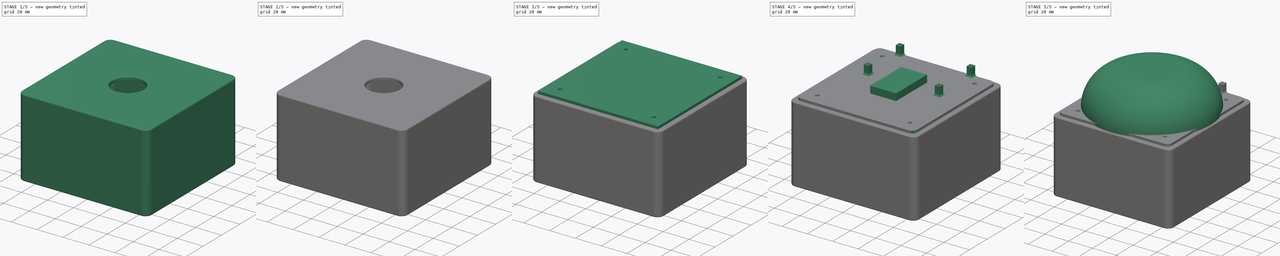
[diagram: build sequence overview — one tinted view per stage of 5, left to right]
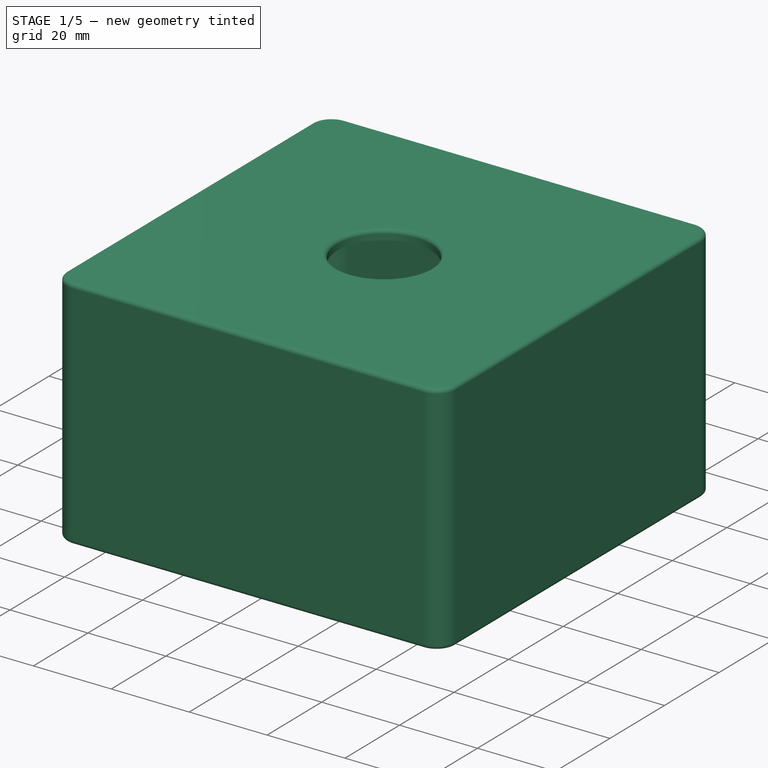
[diagram: stage 1 of 5 — iso view after this stage's code; geometry added in this stage tinted green]
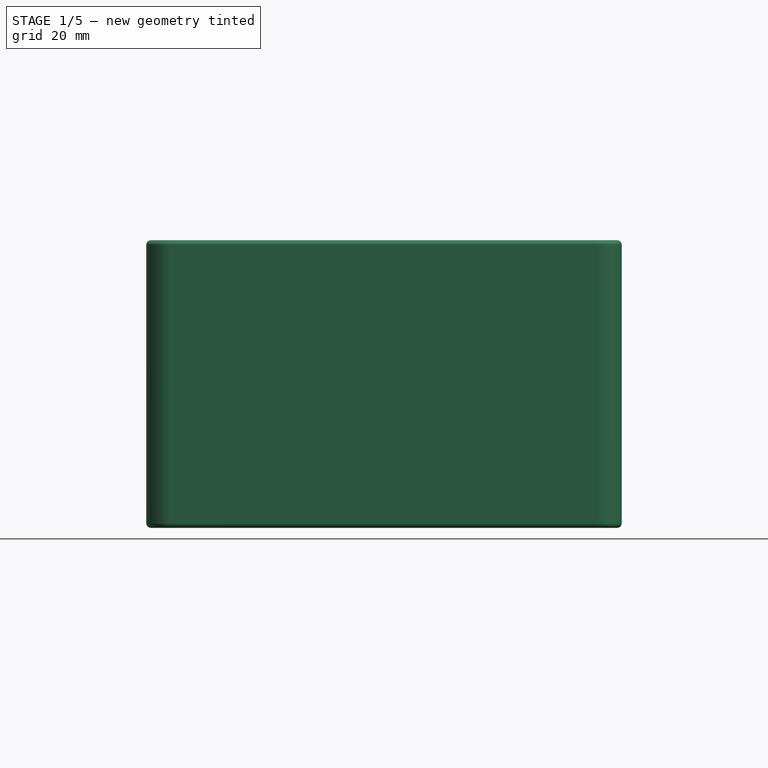
[diagram: stage 1 of 5 — front view after this stage's code; geometry added in this stage tinted green]
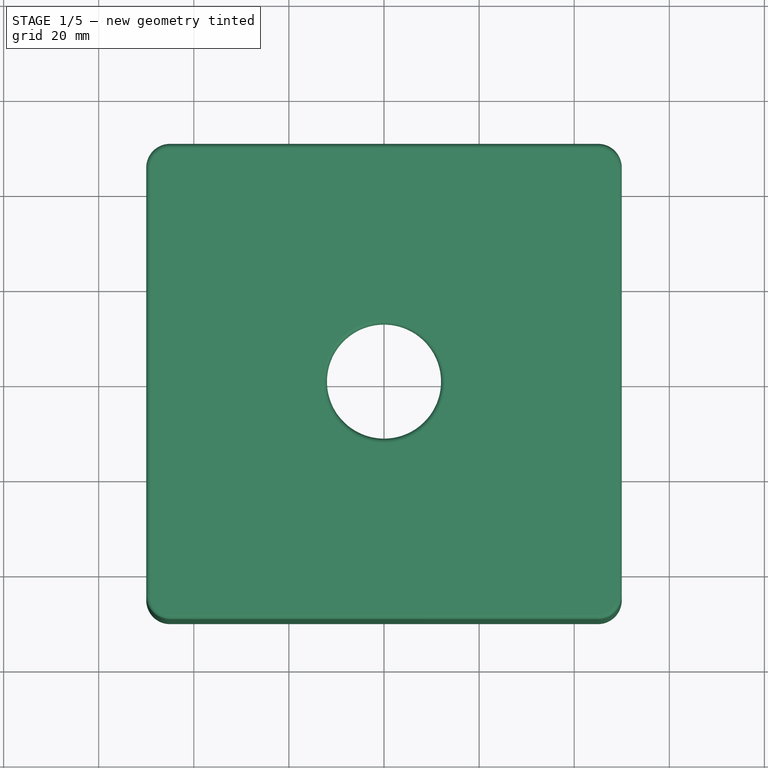
[diagram: stage 1 of 5 — top view after this stage's code; geometry added in this stage tinted green]
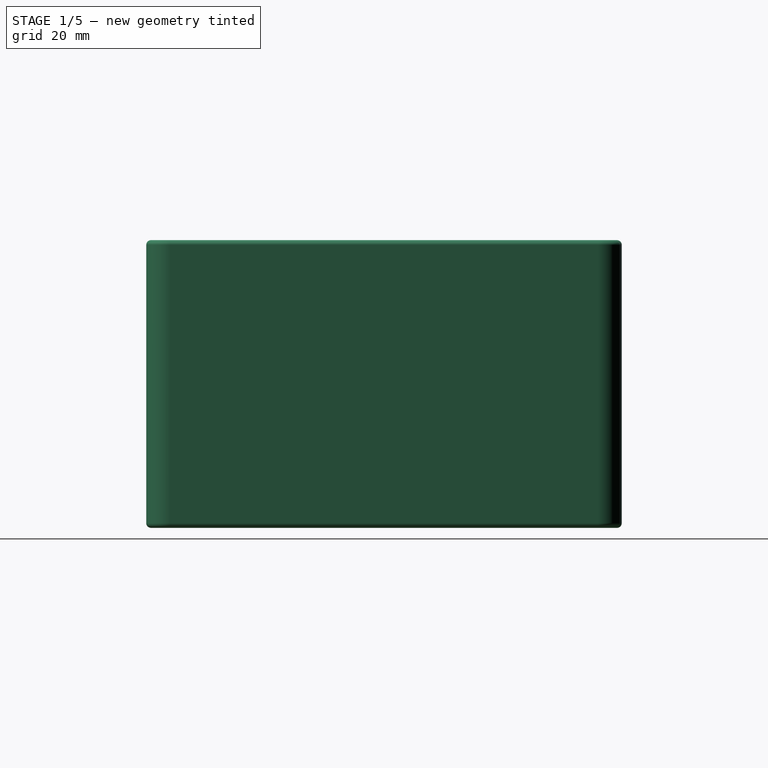
[diagram: stage 1 of 5 — right view after this stage's code; geometry added in this stage tinted green]
FCSTD DOCUMENT  (FreeCAD 0.18R4 (GitTag))
Label: buzzer
License: All rights reserved
LicenseURL: http://en.wikipedia.org/wiki/All_rights_reserved
objects: Sketcher::SketchObject×16, PartDesign::Pad×11, PartDesign::Fillet×8, PartDesign::Body×4, PartDesign::Pocket×3, PartDesign::Chamfer×3, PartDesign::Hole×2
note: 63 computed .brp shape members not serialized (recipe doc carries the construction recipe); baked Part::Feature solids carry a one-line shape summary decoded from their .brp

FEATURE [Sketcher::SketchObject] Sketch004
  MapMode = 5
  Support = -> [XY_Plane002]
  sketch-geometry (5):
    g0: LineSegment StartX=-50 StartY=50 StartZ=0 EndX=50 EndY=50 EndZ=0
    g1: LineSegment StartX=50 StartY=50 StartZ=0 EndX=50 EndY=-50 EndZ=0
    g2: LineSegment StartX=50 StartY=-50 StartZ=0 EndX=-50 EndY=-50 EndZ=0
    g3: LineSegment StartX=-50 StartY=-50 StartZ=0 EndX=-50 EndY=50 EndZ=0
    g4: Circle CenterX=0 CenterY=0 CenterZ=0 NormalX=0 NormalY=0 NormalZ=1 AngleXU=0 Radius=12
  constraints (13):
    c: Coincident(g0,g1)
    c: Coincident(g1,g2)
    c: Coincident(g2,g3)
    c: Coincident(g3,g0)
    c: Horizontal(g0)
    c: Horizontal(g2)
    c: Vertical(g1)
    c: Vertical(g3)
    c: Symmetric(g0,g1,g-1)
    c: DistanceX(g0,g0) = 100
    c: Equal(g1,g0)
    c: Coincident(g4,g-1)
    c: Radius(g4) = 12
FEATURE [PartDesign::Pad] Pad005
  Length = 2.5
  Length2 = 100
  Profile = -> Sketch004
  Reversed = true
  Type = 0
FEATURE [Sketcher::SketchObject] Sketch005
  ExternalGeometry = -> [Pad005]
  MapMode = 5
  Placement = pos=(0,0,-2.5) rot=(1,0,0;3.14159rad)
  Support = -> [Pad005]
  sketch-geometry (8):
    g0: LineSegment StartX=-50 StartY=50 StartZ=0 EndX=50 EndY=50 EndZ=0
    g1: LineSegment StartX=50 StartY=50 StartZ=0 EndX=50 EndY=-50 EndZ=0
    g2: LineSegment StartX=50 StartY=-50 StartZ=0 EndX=-50 EndY=-50 EndZ=0
    g3: LineSegment StartX=-50 StartY=-50 StartZ=0 EndX=-50 EndY=50 EndZ=0
    g4: LineSegment StartX=-47.5 StartY=47.5 StartZ=0 EndX=47.5 EndY=47.5 EndZ=0
    g5: LineSegment StartX=47.5 StartY=47.5 StartZ=0 EndX=47.5 EndY=-47.5 EndZ=0
    g6: LineSegment StartX=47.5 StartY=-47.5 StartZ=0 EndX=-47.5 EndY=-47.5 EndZ=0
    g7: LineSegment StartX=-47.5 StartY=-47.5 StartZ=0 EndX=-47.5 EndY=47.5 EndZ=0
  constraints (21):
    c: Coincident(g0,g1)
    c: Coincident(g1,g2)
    c: Coincident(g2,g3)
    c: Coincident(g3,g0)
    c: Horizontal(g0)
    c: Horizontal(g2)
    c: Vertical(g1)
    c: Vertical(g3)
    c: Coincident(g0,g-3)
    c: Coincident(g1,g-4)
    c: Coincident(g4,g5)
    c: Coincident(g5,g6)
    c: Coincident(g6,g7)
    c: Coincident(g7,g4)
    c: Horizontal(g4)
    c: Horizontal(g6)
    c: Vertical(g5)
    c: Vertical(g7)
    c: Symmetric(g4,g5,g-1)
    c: Equal(g4,g5)
    c: DistanceX(g0,g4) = 2.5
FEATURE [PartDesign::Pad] Pad006
  BaseFeature = -> Pad005
  Length = 58
  Length2 = 100
  Profile = -> Sketch005
  Type = 0
FEATURE [PartDesign::Fillet] Fillet003
  Base = -> Pad006 [Edge16,Edge18,Edge19,Edge21,Edge35,Edge34,Edge33,Edge32]
  BaseFeature = -> Pad006
  Radius = 5
FEATURE [PartDesign::Fillet] Fillet004
  Base = -> Fillet003 [Face1]
  BaseFeature = -> Fillet003
  Radius = 1
FEATURE [PartDesign::Fillet] Fillet005
  Base = -> Fillet004 [Edge54]
  BaseFeature = -> Fillet004
  Radius = 1
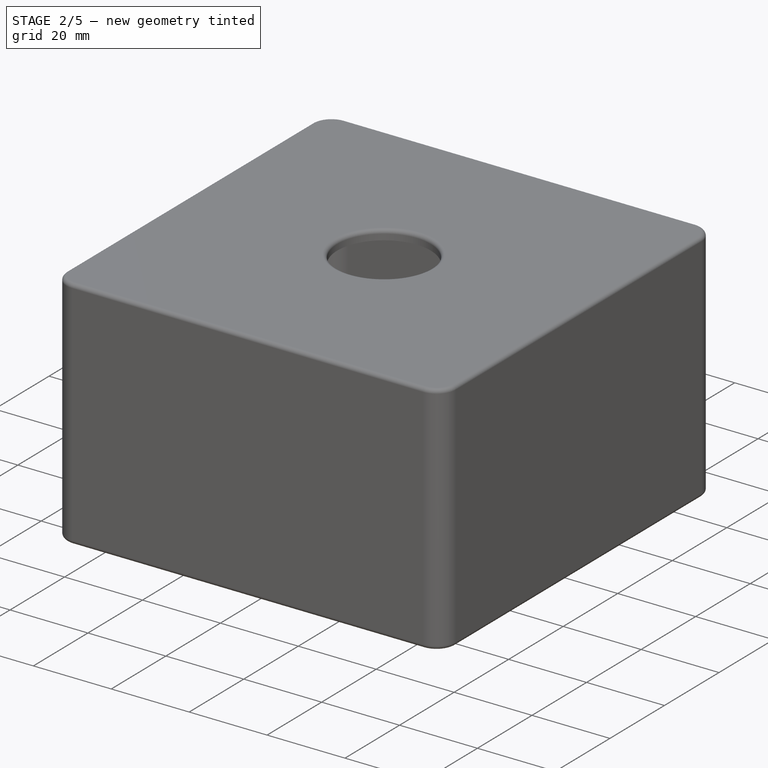
[diagram: stage 2 of 5 — iso view after this stage's code; geometry added in this stage tinted green]
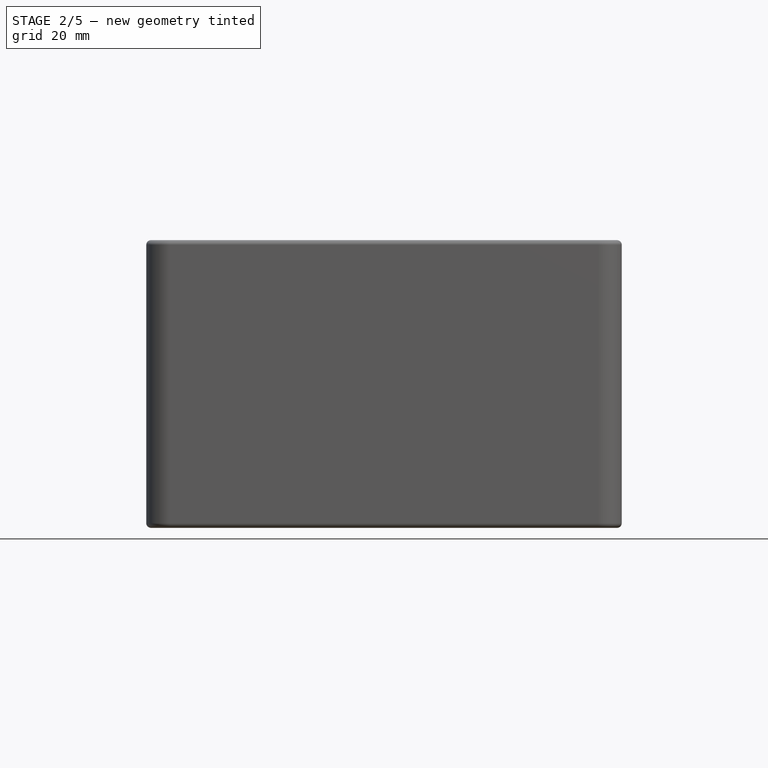
[diagram: stage 2 of 5 — front view after this stage's code; geometry added in this stage tinted green]
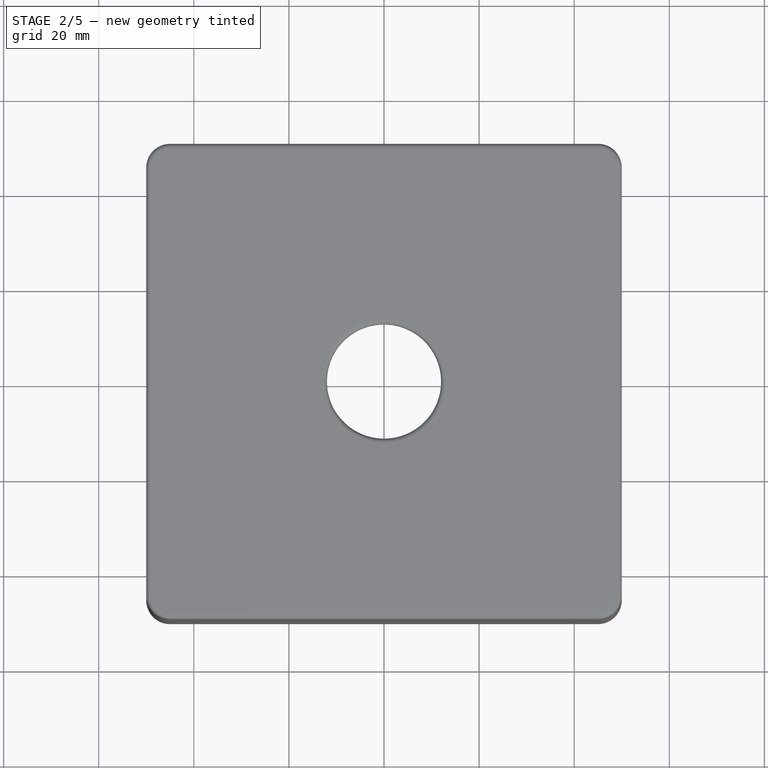
[diagram: stage 2 of 5 — top view after this stage's code; geometry added in this stage tinted green]
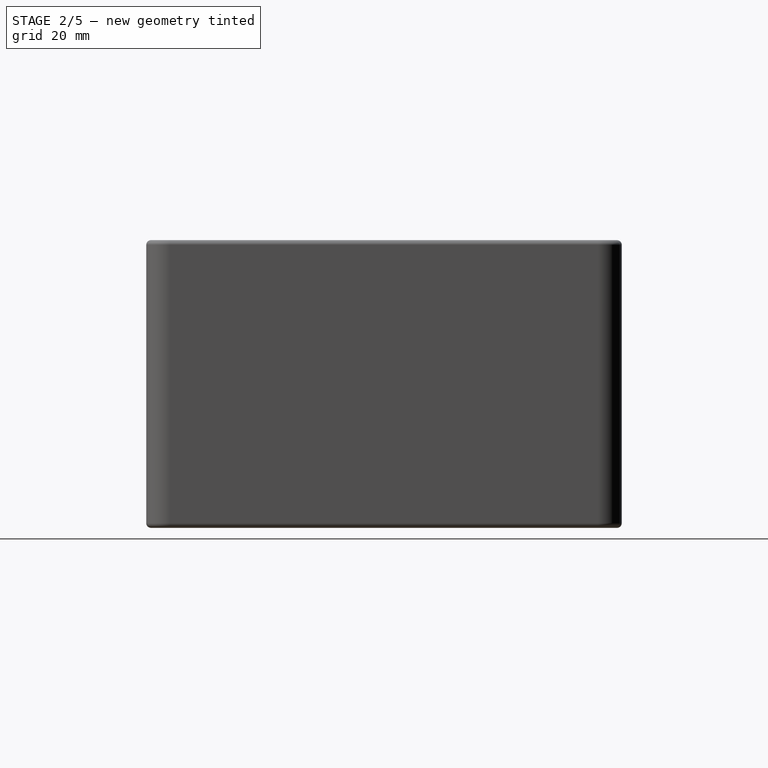
[diagram: stage 2 of 5 — right view after this stage's code; geometry added in this stage tinted green]
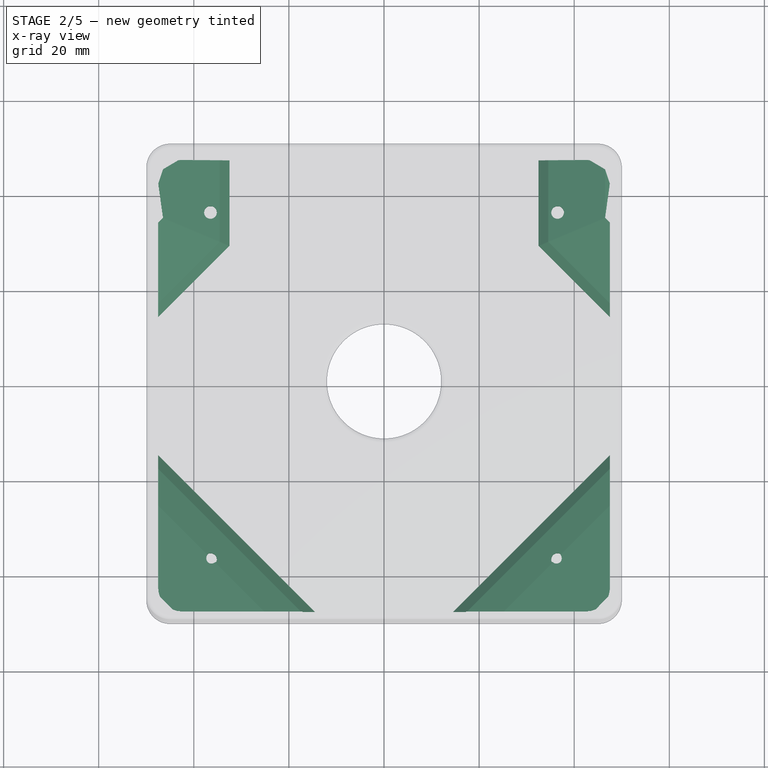
[diagram: stage 2 of 5 — x-ray composite at the top view; earlier geometry ghosted, this stage's added geometry solid]
FEATURE [PartDesign::Body] Body001  label="Bottom"
  Group = -> [Sketch003,Pad003,Sketch011,Pocket,Sketch013,Pad012,Fillet001,Fillet002,Sketch014,Hole]
  Origin = -> Origin001
  Placement = pos=(0,0,-0.5) rot=(0,0,1;0rad)
  Tip = -> Hole
FEATURE [Sketcher::SketchObject] Sketch016
  ExternalGeometry = -> [Fillet005]
  MapMode = 5
  Placement = pos=(0,0,-60.5) rot=(1,0,0;3.14159rad)
  Support = -> [Fillet005]
  sketch-geometry (18):
    g0: LineSegment StartX=47.5 StartY=47.5 StartZ=0 EndX=14.5 EndY=47.5 EndZ=0
    g1: LineSegment StartX=14.5 StartY=47.5 StartZ=0 EndX=47.5 EndY=14.5 EndZ=0
    g2: LineSegment StartX=47.5 StartY=47.5 StartZ=0 EndX=47.5 EndY=14.5 EndZ=0
    g3: LineSegment StartX=-47.5 StartY=47.5 StartZ=0 EndX=-14.5 EndY=47.5 EndZ=0
    g4: LineSegment StartX=-14.5 StartY=47.5 StartZ=0 EndX=-47.5 EndY=14.5 EndZ=0
    g5: LineSegment StartX=-47.5 StartY=14.5 StartZ=0 EndX=-47.5 EndY=47.5 EndZ=0
    g6: LineSegment StartX=-47.5 StartY=-14.5 StartZ=0 EndX=-47.5 EndY=-47.5 EndZ=0
    g7: LineSegment StartX=-32.5 StartY=-29.5 StartZ=0 EndX=-47.5 EndY=-14.5 EndZ=0
    g8: LineSegment StartX=32.5 StartY=-47.5 StartZ=0 EndX=47.5 EndY=-47.5 EndZ=0
    g9: LineSegment StartX=47.5 StartY=-47.5 StartZ=0 EndX=47.5 EndY=-14.5 EndZ=0
    g10: LineSegment [constr] StartX=47.5 StartY=-14.5 StartZ=0 EndX=14.5 EndY=-47.5 EndZ=0
    g11: LineSegment StartX=-32.5 StartY=-29.5 StartZ=0 EndX=-32.5 EndY=-47.5 EndZ=0
    g12: LineSegment StartX=-47.5 StartY=-47.5 StartZ=0 EndX=-32.5 EndY=-47.5 EndZ=0
    g13: LineSegment [constr] StartX=-47.5 StartY=-47.5 StartZ=0 EndX=-14.5 EndY=-47.5 EndZ=0
    g14: LineSegment [constr] StartX=-47.5 StartY=-14.5 StartZ=0 EndX=-14.5 EndY=-47.5 EndZ=0
    g15: LineSegment StartX=32.5 StartY=-47.5 StartZ=0 EndX=32.5 EndY=-29.5 EndZ=0
    g16: LineSegment StartX=32.5 StartY=-29.5 StartZ=0 EndX=47.5 EndY=-14.5 EndZ=0
    g17: LineSegment [constr] StartX=14.5 StartY=-47.5 StartZ=0 EndX=47.5 EndY=-47.5 EndZ=0
  constraints (53):
    c: Horizontal(g0)
    c: Coincident(g0,g1)
    c: Coincident(g2,g0)
    c: Coincident(g2,g1)
    c: Vertical(g2)
    c: Horizontal(g3)
    c: Coincident(g3,g4)
    c: Coincident(g4,g5)
    c: Coincident(g5,g3)
    c: Vertical(g5)
    c: Vertical(g6)
    c: Coincident(g7,g6)
    c: Horizontal(g8)
    c: Coincident(g8,g9)
    c: Vertical(g9)
    c: Coincident(g9,g10)
    c: Equal(g9,g6)
    c: Equal(g5,g3)
    c: Equal(g3,g0)
    c: Equal(g0,g2)
    c: DistanceY(g5,g5) = 33
    c: PointOnObject(g9,g-5)
    c: PointOnObject(g6,g-4)
    c: PointOnObject(g3,g-3)
    c: PointOnObject(g4,g-4)
    c: PointOnObject(g0,g-3)
    c: PointOnObject(g1,g-5)
    c: Vertical(g11)
    c: Coincident(g12,g6)
    c: PointOnObject(g12,g-6)
    c: Horizontal(g12)
    c: Coincident(g11,g12)
    c: Coincident(g11,g7)
    c: Coincident(g13,g6)
    c: PointOnObject(g13,g-6)
    c: Coincident(g14,g6)
    c: Coincident(g14,g13)
    c: Equal(g13,g6)
    c: Equal(g6,g5)
    c: PointOnObject(g7,g14)
    c: DistanceX(g12,g12) = 15
    c: PointOnObject(g8,g-6)
    c: PointOnObject(g15,g8)
    c: PointOnObject(g15,g10)
    c: Vertical(g15)
    c: Coincident(g16,g15)
    c: Coincident(g16,g9)
    c: PointOnObject(g10,g-6)
    c: Coincident(g17,g10)
    c: Coincident(g17,g8)
    c: Equal(g17,g9)
    c: Coincident(g8,g15)
    c: Equal(g8,g12)
FEATURE [PartDesign::Pad] Pad013
  BaseFeature = -> Fillet005
  Length = 10
  Length2 = 100
  Profile = -> Sketch016
  Reversed = true
  Type = 0
FEATURE [Sketcher::SketchObject] Sketch017
  ExternalGeometry = -> [Pad013]
  MapMode = 5
  Placement = pos=(0,0,-60.5) rot=(1,0,0;3.14159rad)
  Support = -> [Pad013]
  sketch-geometry (14):
    g0: LineSegment StartX=-47.5 StartY=14.5 StartZ=0 EndX=-47.5 EndY=47.5 EndZ=0
    g1: LineSegment StartX=-47.5 StartY=47.5 StartZ=0 EndX=-14.5 EndY=47.5 EndZ=0
    g2: LineSegment StartX=-14.5 StartY=47.5 StartZ=0 EndX=-47.5 EndY=14.5 EndZ=0
    g3: LineSegment StartX=14.5 StartY=47.5 StartZ=0 EndX=47.5 EndY=47.5 EndZ=0
    g4: LineSegment StartX=47.5 StartY=47.5 StartZ=0 EndX=47.5 EndY=14.5 EndZ=0
    g5: LineSegment StartX=47.5 StartY=14.5 StartZ=0 EndX=14.5 EndY=47.5 EndZ=0
    g6: LineSegment StartX=47.5 StartY=-14.5 StartZ=0 EndX=32.5 EndY=-29.5 EndZ=0
    g7: LineSegment StartX=32.5 StartY=-29.5 StartZ=0 EndX=32.5 EndY=-47.5 EndZ=0
    g8: LineSegment StartX=32.5 StartY=-47.5 StartZ=0 EndX=47.5 EndY=-47.5 EndZ=0
    g9: LineSegment StartX=47.5 StartY=-47.5 StartZ=0 EndX=47.5 EndY=-14.5 EndZ=0
    g10: LineSegment StartX=-47.5 StartY=-14.5 StartZ=0 EndX=-47.5 EndY=-47.5 EndZ=0
    g11: LineSegment StartX=-47.5 StartY=-47.5 StartZ=0 EndX=-32.5 EndY=-47.5 EndZ=0
    g12: LineSegment StartX=-32.5 StartY=-47.5 StartZ=0 EndX=-32.5 EndY=-29.5 EndZ=0
    g13: LineSegment StartX=-32.5 StartY=-29.5 StartZ=0 EndX=-47.5 EndY=-14.5 EndZ=0
  constraints (29):
    c: Coincident(g-3,g0)
    c: Coincident(g0,g-9)
    c: Coincident(g0,g1)
    c: Coincident(g1,g-3)
    c: Coincident(g1,g2)
    c: Coincident(g2,g0)
    c: Coincident(g-4,g3)
    c: Horizontal(g3)
    c: Coincident(g3,g4)
    c: Coincident(g4,g-4)
    c: Vertical(g4)
    c: Coincident(g4,g5)
    c: Coincident(g5,g3)
    c: Coincident(g-5,g6)
    c: Coincident(g6,g-6)
    c: Coincident(g6,g7)
    c: Coincident(g7,g-6)
    c: Coincident(g7,g8)
    c: Coincident(g8,g-11)
    c: Coincident(g8,g9)
    c: Coincident(g9,g6)
    c: Coincident(g-7,g10)
    c: Coincident(g10,g-10)
    c: Coincident(g10,g11)
    c: Coincident(g11,g-8)
    c: Coincident(g11,g12)
    c: Coincident(g12,g-8)
    c: Coincident(g12,g13)
    c: Coincident(g13,g10)
FEATURE [PartDesign::Pocket] Pocket001
  BaseFeature = -> Pad013
  Length = 2
  Length2 = 100
  Profile = -> Sketch017
  Type = 0
FEATURE [PartDesign::Chamfer] Chamfer
  Base = -> Pocket001 [Edge146,Edge145,Edge147,Edge157,Edge151,Edge152]
  BaseFeature = -> Pocket001
  Size = 7
FEATURE [PartDesign::Chamfer] Chamfer001
  Base = -> Chamfer [Edge14,Edge16,Edge61,Edge129,Edge123,Edge124]
  BaseFeature = -> Chamfer
  Size = 7
FEATURE [PartDesign::Chamfer] Chamfer002
  Base = -> Chamfer001 [Edge40,Edge142]
  BaseFeature = -> Chamfer001
  Size = 7
FEATURE [Sketcher::SketchObject] Sketch018
  MapMode = 5
  Placement = pos=(0,0,-58.5) rot=(1,0,0;3.14159rad)
  Support = -> [Chamfer002]
  sketch-geometry (8):
    g0: LineSegment [constr] StartX=-36.5 StartY=36.5 StartZ=0 EndX=36.5 EndY=36.5 EndZ=0
    g1: LineSegment [constr] StartX=36.5 StartY=36.5 StartZ=0 EndX=36.5 EndY=-36.5 EndZ=0
    g2: LineSegment [constr] StartX=36.5 StartY=-36.5 StartZ=0 EndX=-36.5 EndY=-36.5 EndZ=0
    g3: LineSegment [constr] StartX=-36.5 StartY=-36.5 StartZ=0 EndX=-36.5 EndY=36.5 EndZ=0
    g4: Circle CenterX=-36.5 CenterY=36.5 CenterZ=0 NormalX=0 NormalY=0 NormalZ=1 AngleXU=0 Radius=2
    g5: Circle CenterX=36.5 CenterY=36.5 CenterZ=0 NormalX=0 NormalY=0 NormalZ=1 AngleXU=0 Radius=2
    g6: Circle CenterX=36.5 CenterY=-36.5 CenterZ=0 NormalX=0 NormalY=0 NormalZ=1 AngleXU=0 Radius=2
    g7: Circle CenterX=-36.5 CenterY=-36.5 CenterZ=0 NormalX=0 NormalY=0 NormalZ=1 AngleXU=0 Radius=2
  constraints (19):
    c: Coincident(g0,g1)
    c: Coincident(g1,g2)
    c: Coincident(g2,g3)
    c: Coincident(g3,g0)
    c: Horizontal(g0)
    c: Horizontal(g2)
    c: Vertical(g1)
    c: Vertical(g3)
    c: Symmetric(g0,g1,g-1)
    c: Equal(g0,g3)
    c: DistanceY(g0) = 36.5
    c: Coincident(g4,g0)
    c: Coincident(g5,g0)
    c: Coincident(g6,g1)
    c: Coincident(g7,g2)
    c: Equal(g7,g4)
    c: Equal(g4,g5)
    c: Equal(g5,g6)
    c: Radius(g4) = 2
FEATURE [PartDesign::Hole] Hole001
  BaseFeature = -> Chamfer002
  Depth = 6
  DepthType = 0
  Diameter = 2.65
  DrillPoint = 1
  DrillPointAngle = 118
  HoleCutCountersinkAngle = 90
  HoleCutDepth = 0
  HoleCutDiameter = 3
  HoleCutType = 0
  ModelActualThread = false
  Profile = -> Sketch018
  Tapered = false
  TaperedAngle = 90
  ThreadAngle = 60
  ThreadClass = 0
  ThreadCutOffInner = 0.0378886
  ThreadCutOffOuter = 0.0757772
  ThreadDirection = 1
  ThreadFit = 0
  ThreadPitch = 0.35
  ThreadSize = 9
  ThreadType = 2
  Threaded = true
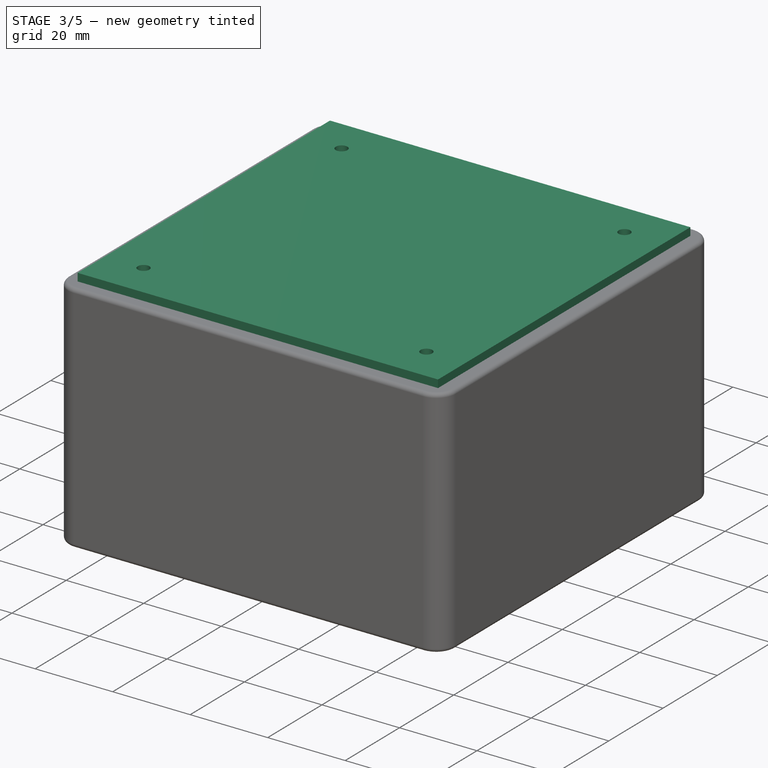
[diagram: stage 3 of 5 — iso view after this stage's code; geometry added in this stage tinted green]
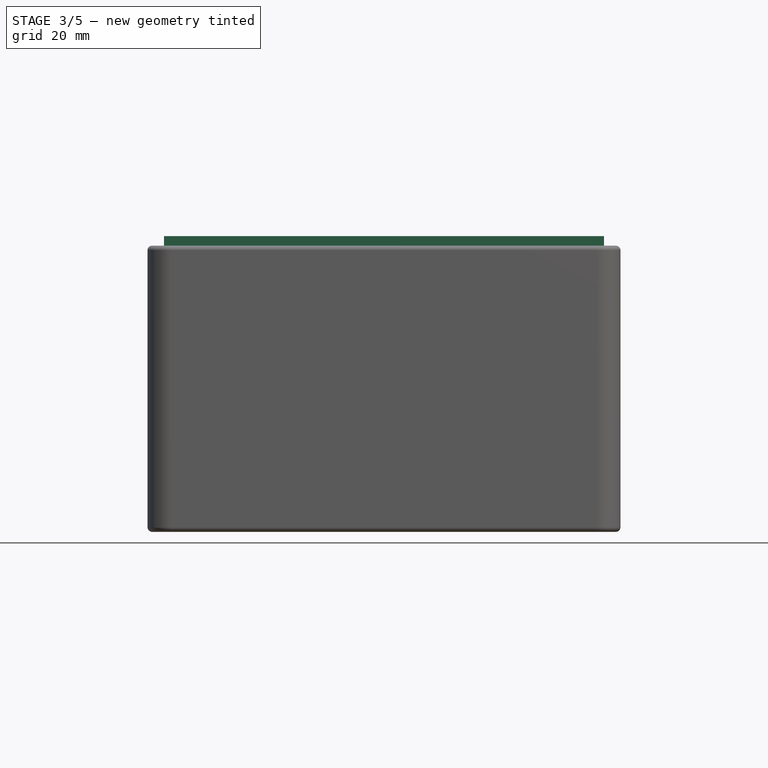
[diagram: stage 3 of 5 — front view after this stage's code; geometry added in this stage tinted green]
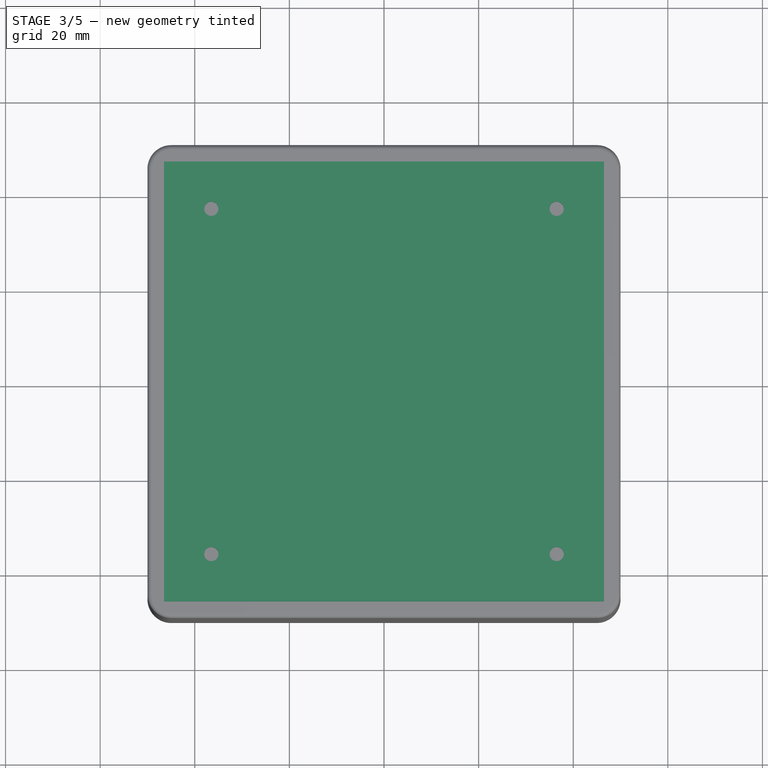
[diagram: stage 3 of 5 — top view after this stage's code; geometry added in this stage tinted green]
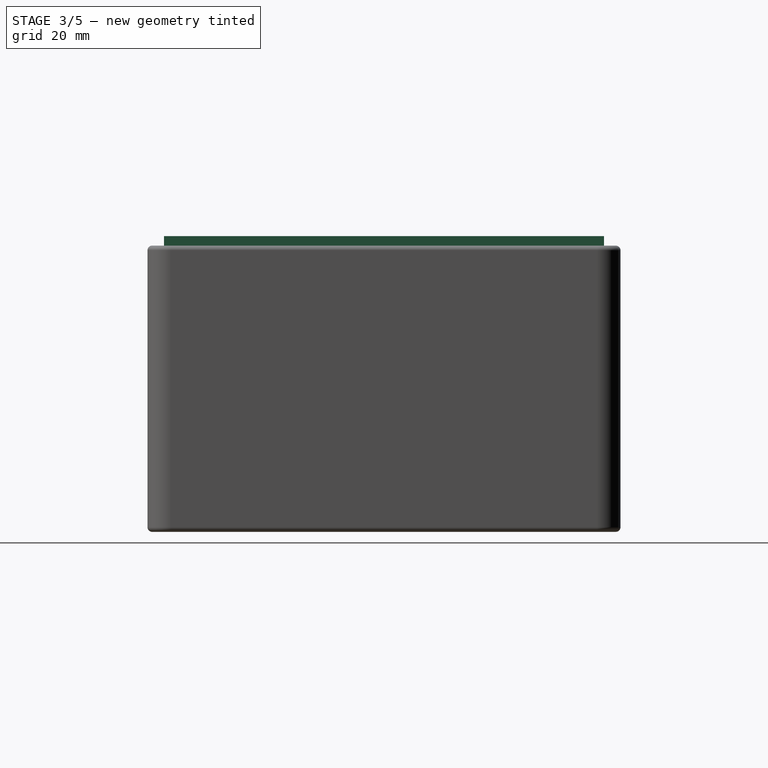
[diagram: stage 3 of 5 — right view after this stage's code; geometry added in this stage tinted green]
FEATURE [Sketcher::SketchObject] Sketch003
  MapMode = 5
  Support = -> [XY_Plane001]
  sketch-geometry (4):
    g0: LineSegment StartX=-46.5 StartY=46.5 StartZ=0 EndX=46.5 EndY=46.5 EndZ=0
    g1: LineSegment StartX=46.5 StartY=46.5 StartZ=0 EndX=46.5 EndY=-46.5 EndZ=0
    g2: LineSegment StartX=46.5 StartY=-46.5 StartZ=0 EndX=-46.5 EndY=-46.5 EndZ=0
    g3: LineSegment StartX=-46.5 StartY=-46.5 StartZ=0 EndX=-46.5 EndY=46.5 EndZ=0
  constraints (11):
    c: Coincident(g0,g1)
    c: Coincident(g1,g2)
    c: Coincident(g2,g3)
    c: Coincident(g3,g0)
    c: Horizontal(g0)
    c: Horizontal(g2)
    c: Vertical(g1)
    c: Vertical(g3)
    c: Symmetric(g1,g0,g-1)
    c: Equal(g0,g1)
    c: DistanceX(g0,g0) = 93
FEATURE [PartDesign::Pad] Pad003
  Length = 2
  Length2 = 100
  Profile = -> Sketch003
  Type = 0
FEATURE [Sketcher::SketchObject] Sketch011
  ExternalGeometry = -> [Pad003]
  MapMode = 5
  Placement = pos=(0,0,2) rot=(0,0,1;0rad)
  Support = -> [Pad003]
  sketch-geometry (8):
    g0: Circle CenterX=-36.5 CenterY=36.5 CenterZ=0 NormalX=0 NormalY=0 NormalZ=1 AngleXU=0 Radius=1.5
    g1: Circle CenterX=36.5 CenterY=36.5 CenterZ=0 NormalX=0 NormalY=0 NormalZ=1 AngleXU=0 Radius=1.5
    g2: Circle CenterX=36.5 CenterY=-36.5 CenterZ=0 NormalX=0 NormalY=0 NormalZ=1 AngleXU=0 Radius=1.5
    g3: Circle CenterX=-36.5 CenterY=-36.5 CenterZ=0 NormalX=0 NormalY=0 NormalZ=1 AngleXU=0 Radius=1.5
    g4: LineSegment [constr] StartX=-36.5 StartY=36.5 StartZ=0 EndX=36.5 EndY=36.5 EndZ=0
    g5: LineSegment [constr] StartX=36.5 StartY=36.5 StartZ=0 EndX=36.5 EndY=-36.5 EndZ=0
    g6: LineSegment [constr] StartX=36.5 StartY=-36.5 StartZ=0 EndX=-36.5 EndY=-36.5 EndZ=0
    g7: LineSegment [constr] StartX=-36.5 StartY=-36.5 StartZ=0 EndX=-36.5 EndY=36.5 EndZ=0
  constraints (19):
    c: Coincident(g4,g5)
    c: Coincident(g5,g6)
    c: Coincident(g6,g7)
    c: Coincident(g7,g4)
    c: Horizontal(g4)
    c: Horizontal(g6)
    c: Vertical(g5)
    c: Vertical(g7)
    c: Coincident(g4,g0)
    c: Coincident(g5,g2)
    c: Coincident(g1,g4)
    c: Coincident(g3,g6)
    c: Symmetric(g0,g2,g-1)
    c: Equal(g4,g7)
    c: Equal(g0,g1)
    c: Equal(g1,g2)
    c: Equal(g2,g3)
    c: Radius(g0) = 1.5
    c: DistanceX(g-3,g0) = 10
FEATURE [PartDesign::Pocket] Pocket
  BaseFeature = -> Pad003
  Length = 5
  Length2 = 100
  Profile = -> Sketch011
  Type = 0
FEATURE [Sketcher::SketchObject] Sketch019
  ExternalGeometry = -> [Hole001]
  MapMode = 5
  Placement = pos=(0,47.5,0) rot=(1,0,0;1.5708rad)
  Support = -> [Hole001]
  sketch-geometry (4):
    g0: LineSegment StartX=-5.5 StartY=-53.5 StartZ=0 EndX=5.5 EndY=-53.5 EndZ=0
    g1: LineSegment StartX=5.5 StartY=-53.5 StartZ=0 EndX=5.5 EndY=-60.5 EndZ=0
    g2: LineSegment StartX=5.5 StartY=-60.5 StartZ=0 EndX=-5.5 EndY=-60.5 EndZ=0
    g3: LineSegment StartX=-5.5 StartY=-60.5 StartZ=0 EndX=-5.5 EndY=-53.5 EndZ=0
  constraints (12):
    c: Coincident(g0,g1)
    c: Coincident(g1,g2)
    c: Coincident(g2,g3)
    c: Coincident(g3,g0)
    c: Horizontal(g0)
    c: Horizontal(g2)
    c: Vertical(g1)
    c: Vertical(g3)
    c: Symmetric(g0,g0,g-2)
    c: DistanceX(g0,g0) = 11
    c: DistanceY(g3,g3) = 7
    c: PointOnObject(g2,g-3)
FEATURE [PartDesign::Pocket] Pocket002
  BaseFeature = -> Hole001
  Length = 3
  Length2 = 100
  Profile = -> Sketch019
  Type = 0
FEATURE [PartDesign::Fillet] Fillet006
  Base = -> Pocket002 [Edge182,Edge141,Edge150,Edge151,Edge140]
  BaseFeature = -> Pocket002
  Radius = 1
FEATURE [PartDesign::Fillet] Fillet007
  Base = -> Fillet006 [Edge155]
  BaseFeature = -> Fillet006
  Radius = 10
FEATURE [PartDesign::Body] Body002  label="Top"
  Group = -> [Sketch004,Pad005,Sketch005,Pad006,Fillet003,Fillet004,Fillet005,Sketch016,Pad013,Sketch017,Pocket001,Chamfer,Chamfer001,Chamfer002,Sketch018,Hole001,Sketch019,Pocket002,Fillet006,Fillet007]
  Origin = -> Origin002
  Placement = pos=(0,0,60) rot=(0,0,1;0rad)
  Tip = -> Fillet007
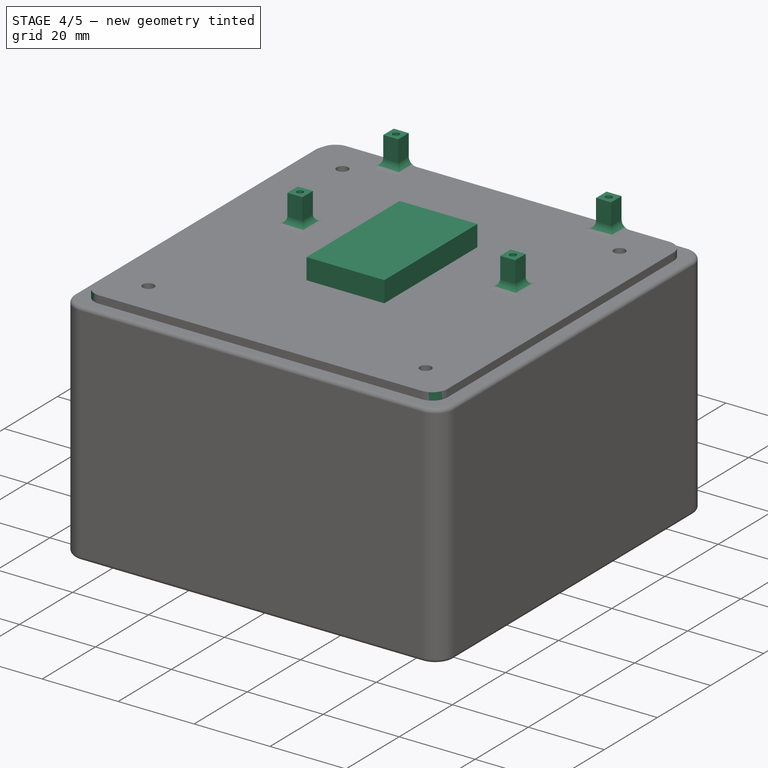
[diagram: stage 4 of 5 — iso view after this stage's code; geometry added in this stage tinted green]
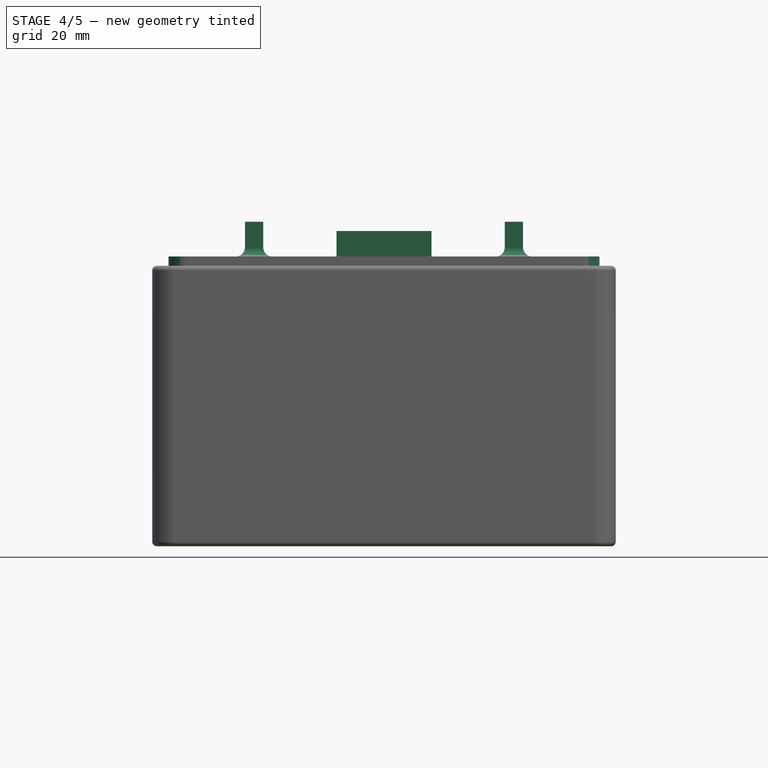
[diagram: stage 4 of 5 — front view after this stage's code; geometry added in this stage tinted green]
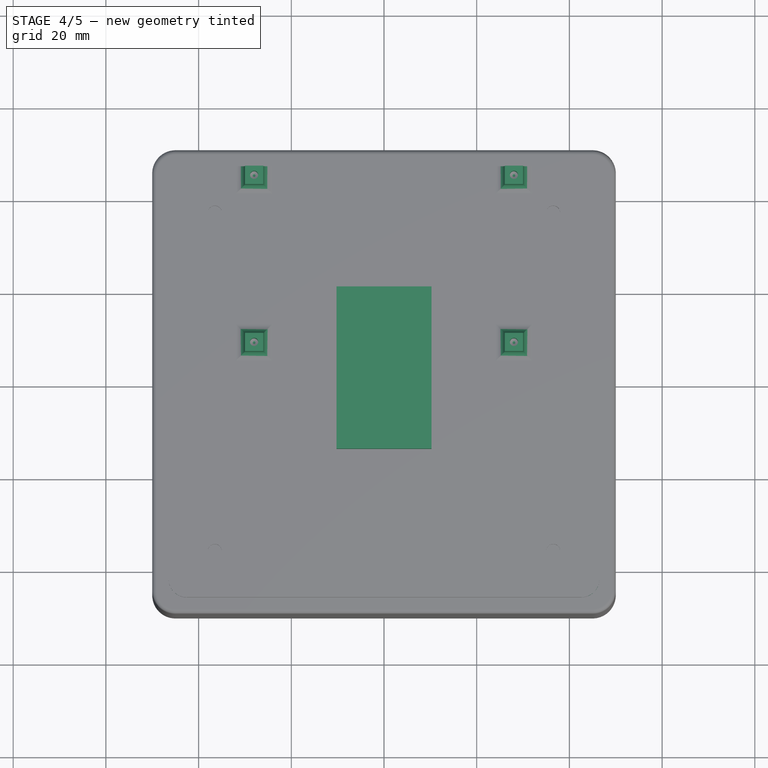
[diagram: stage 4 of 5 — top view after this stage's code; geometry added in this stage tinted green]
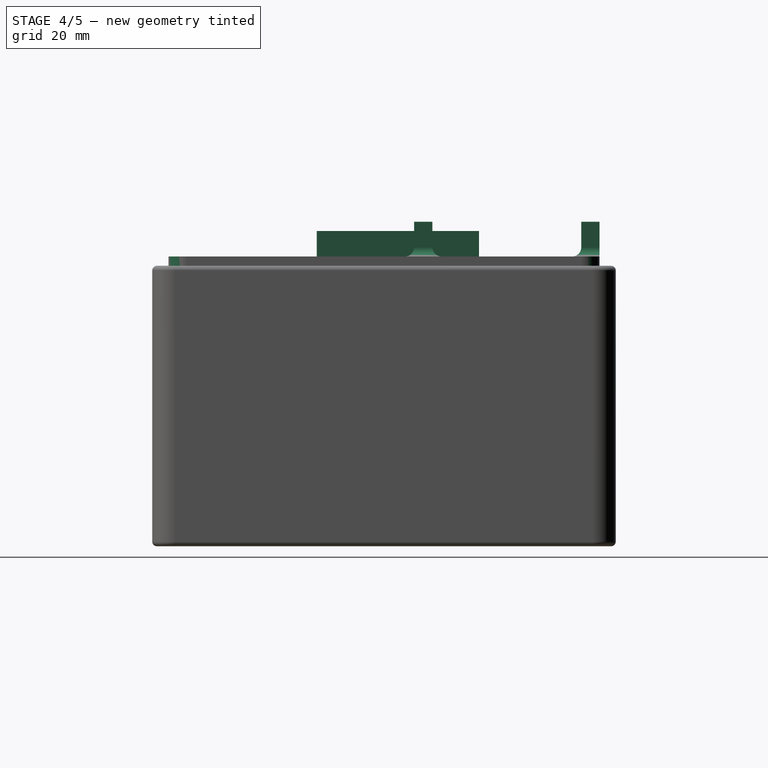
[diagram: stage 4 of 5 — right view after this stage's code; geometry added in this stage tinted green]
FEATURE [PartDesign::Body] Body  label="Button"
  Group = -> [Sketch,Pad,Fillet,Sketch006,Pad007,Sketch007,Pad008]
  Origin = -> Origin
  Placement = pos=(0,0,60) rot=(0,0,1;1.5708rad)
  Tip = -> Pad008
FEATURE [Sketcher::SketchObject] Sketch008
  MapMode = 5
  Support = -> [XY_Plane003]
  sketch-geometry (12):
    g0: LineSegment StartX=-30 StartY=20 StartZ=0 EndX=30 EndY=20 EndZ=0
    g1: LineSegment StartX=30 StartY=20 StartZ=0 EndX=30 EndY=-20 EndZ=0
    g2: LineSegment StartX=30 StartY=-20 StartZ=0 EndX=-30 EndY=-20 EndZ=0
    g3: LineSegment StartX=-30 StartY=-20 StartZ=0 EndX=-30 EndY=20 EndZ=0
    g4: Circle CenterX=-28.025 CenterY=18.025 CenterZ=0 NormalX=0 NormalY=0 NormalZ=1 AngleXU=0 Radius=1.175
    g5: Circle CenterX=28.025 CenterY=18.025 CenterZ=0 NormalX=0 NormalY=0 NormalZ=1 AngleXU=0 Radius=1.175
    g6: Circle CenterX=-28.025 CenterY=-18.025 CenterZ=0 NormalX=0 NormalY=0 NormalZ=1 AngleXU=0 Radius=1.175
    g7: Circle CenterX=28.025 CenterY=-18.025 CenterZ=0 NormalX=0 NormalY=0 NormalZ=1 AngleXU=0 Radius=1.175
    g8: LineSegment [constr] StartX=-28.025 StartY=18.025 StartZ=0 EndX=28.025 EndY=18.025 EndZ=0
    g9: LineSegment [constr] StartX=28.025 StartY=18.025 StartZ=0 EndX=28.025 EndY=-18.025 EndZ=0
    g10: LineSegment [constr] StartX=28.025 StartY=-18.025 StartZ=0 EndX=-28.025 EndY=-18.025 EndZ=0
    g11: LineSegment [constr] StartX=-28.025 StartY=-18.025 StartZ=0 EndX=-28.025 EndY=18.025 EndZ=0
  constraints (30):
    c: Coincident(g0,g1)
    c: Coincident(g1,g2)
    c: Coincident(g2,g3)
    c: Coincident(g3,g0)
    c: Horizontal(g0)
    c: Horizontal(g2)
    c: Vertical(g1)
    c: Vertical(g3)
    c: Symmetric(g0,g1,g-1)
    c: DistanceX(g0,g0) = 60
    c: DistanceY(g3,g3) = 40
    c: Equal(g6,g7)
    c: Equal(g7,g5)
    c: Equal(g5,g4)
    c: Coincident(g8,g9)
    c: Coincident(g9,g10)
    c: Coincident(g10,g11)
    c: Coincident(g11,g8)
    c: Horizontal(g8)
    c: Horizontal(g10)
    c: Vertical(g9)
    c: Vertical(g11)
    c: Coincident(g8,g4)
    c: Coincident(g9,g7)
    c: Coincident(g5,g8)
    c: Coincident(g6,g10)
    c: Symmetric(g4,g7,g-1)
    c: Radius(g4) = 1.175
    c: DistanceY(g4,g0) = 1.975
    c: DistanceX(g0,g4) = 1.975
FEATURE [PartDesign::Pad] Pad009
  Length = 1.5
  Length2 = 100
  Profile = -> Sketch008
  Type = 0
FEATURE [Sketcher::SketchObject] Sketch009
  ExternalGeometry = -> [Pad009]
  MapMode = 5
  Placement = pos=(0,0,1.5) rot=(0,0,1;0rad)
  Support = -> [Pad009]
  sketch-geometry (4):
    g0: LineSegment StartX=-10.25 StartY=20.5 StartZ=0 EndX=10.25 EndY=20.5 EndZ=0
    g1: LineSegment StartX=10.25 StartY=20.5 StartZ=0 EndX=10.25 EndY=-14.5 EndZ=0
    g2: LineSegment StartX=10.25 StartY=-14.5 StartZ=0 EndX=-10.25 EndY=-14.5 EndZ=0
    g3: LineSegment StartX=-10.25 StartY=-14.5 StartZ=0 EndX=-10.25 EndY=20.5 EndZ=0
  constraints (12):
    c: Coincident(g0,g1)
    c: Coincident(g1,g2)
    c: Coincident(g2,g3)
    c: Coincident(g3,g0)
    c: Horizontal(g0)
    c: Horizontal(g2)
    c: Vertical(g1)
    c: Vertical(g3)
    c: DistanceX(g0,g0) = 20.5
    c: DistanceY(g1,g1) = 35
    c: DistanceY(g-3,g0) = 0.5
    c: Symmetric(g0,g0,g-2)
FEATURE [PartDesign::Pad] Pad010
  BaseFeature = -> Pad009
  Length = 6
  Length2 = 100
  Profile = -> Sketch009
  Type = 0
FEATURE [PartDesign::Body] Body003  label="PCB"
  Group = -> [Sketch008,Pad009,Sketch009,Pad010,Sketch012,Pad011]
  Origin = -> Origin003
  Placement = pos=(0,26.5,10.5) rot=(0,1,0;3.14159rad)
  Tip = -> Pad011
FEATURE [Sketcher::SketchObject] Sketch013
  ExternalGeometry = -> [Pocket]
  MapMode = 5
  Placement = pos=(0,0,2) rot=(0,0,1;0rad)
  Support = -> [Pocket]
  sketch-geometry (24):
    g0: LineSegment [constr] StartX=-28.025 StartY=44.525 StartZ=0 EndX=28.025 EndY=44.525 EndZ=0
    g1: LineSegment [constr] StartX=28.025 StartY=44.525 StartZ=0 EndX=28.025 EndY=8.475 EndZ=0
    g2: LineSegment [constr] StartX=28.025 StartY=8.475 StartZ=0 EndX=-28.025 EndY=8.475 EndZ=0
    g3: LineSegment [constr] StartX=-28.025 StartY=8.475 StartZ=0 EndX=-28.025 EndY=44.525 EndZ=0
    g4: LineSegment [constr] StartX=-30 StartY=46.5 StartZ=0 EndX=30 EndY=46.5 EndZ=0
    g5: LineSegment [constr] StartX=30 StartY=46.5 StartZ=0 EndX=30 EndY=6.5 EndZ=0
    g6: LineSegment [constr] StartX=30 StartY=6.5 StartZ=0 EndX=-30 EndY=6.5 EndZ=0
    g7: LineSegment [constr] StartX=-30 StartY=6.5 StartZ=0 EndX=-30 EndY=46.5 EndZ=0
    g8: LineSegment StartX=-30 StartY=46.5 StartZ=0 EndX=-26.05 EndY=46.5 EndZ=0
    g9: LineSegment StartX=-26.05 StartY=46.5 StartZ=0 EndX=-26.05 EndY=42.55 EndZ=0
    g10: LineSegment StartX=-26.05 StartY=42.55 StartZ=0 EndX=-30 EndY=42.55 EndZ=0
    g11: LineSegment StartX=-30 StartY=42.55 StartZ=0 EndX=-30 EndY=46.5 EndZ=0
    g12: LineSegment StartX=26.05 StartY=46.5 StartZ=0 EndX=30 EndY=46.5 EndZ=0
    g13: LineSegment StartX=30 StartY=46.5 StartZ=0 EndX=30 EndY=42.55 EndZ=0
    g14: LineSegment StartX=30 StartY=42.55 StartZ=0 EndX=26.05 EndY=42.55 EndZ=0
    g15: LineSegment StartX=26.05 StartY=42.55 StartZ=0 EndX=26.05 EndY=46.5 EndZ=0
    g16: LineSegment StartX=26.05 StartY=10.45 StartZ=0 EndX=30 EndY=10.45 EndZ=0
    g17: LineSegment StartX=30 StartY=10.45 StartZ=0 EndX=30 EndY=6.5 EndZ=0
    g18: LineSegment StartX=30 StartY=6.5 StartZ=0 EndX=26.05 EndY=6.5 EndZ=0
    g19: LineSegment StartX=26.05 StartY=6.5 StartZ=0 EndX=26.05 EndY=10.45 EndZ=0
    g20: LineSegment StartX=-26.05 StartY=6.5 StartZ=0 EndX=-30 EndY=6.5 EndZ=0
    g21: LineSegment StartX=-30 StartY=6.5 StartZ=0 EndX=-30 EndY=10.45 EndZ=0
    g22: LineSegment StartX=-30 StartY=10.45 StartZ=0 EndX=-26.05 EndY=10.45 EndZ=0
    g23: LineSegment StartX=-26.05 StartY=10.45 StartZ=0 EndX=-26.05 EndY=6.5 EndZ=0
  constraints (64):
    c: Coincident(g0,g1)
    c: Coincident(g1,g2)
    c: Coincident(g2,g3)
    c: Coincident(g3,g0)
    c: Horizontal(g0)
    c: Horizontal(g2)
    c: Vertical(g1)
    c: Vertical(g3)
    c: Coincident(g4,g5)
    c: Coincident(g5,g6)
    c: Coincident(g6,g7)
    c: Coincident(g7,g4)
    c: Horizontal(g4)
    c: Horizontal(g6)
    c: Vertical(g5)
    c: Vertical(g7)
    c: Symmetric(g0,g0,g-2)
    c: Symmetric(g4,g4,g-2)
    c: DistanceY(g0,g4) = 1.975
    c: DistanceX(g4,g0) = 1.975
    c: DistanceY(g6,g2) = 1.975
    c: DistanceX(g4,g4) = 60
    c: DistanceY(g7,g7) = 40
    c: DistanceY(g4,g-3) = 0
    c: Coincident(g8,g9)
    c: Coincident(g9,g10)
    c: Coincident(g10,g11)
    c: Coincident(g11,g8)
    c: Horizontal(g8)
    c: Horizontal(g10)
    c: Vertical(g9)
    c: Vertical(g11)
    c: Symmetric(g8,g9,g0)
    c: Coincident(g8,g4)
    c: Coincident(g12,g13)
    c: Coincident(g13,g14)
    c: Coincident(g14,g15)
    c: Coincident(g15,g12)
    c: Horizontal(g12)
    c: Horizontal(g14)
    c: Vertical(g13)
    c: Vertical(g15)
    c: Coincident(g16,g17)
    c: Coincident(g17,g18)
    c: Coincident(g18,g19)
    c: Coincident(g19,g16)
    c: Horizontal(g16)
    c: Horizontal(g18)
    c: Vertical(g17)
    c: Vertical(g19)
    c: Coincident(g20,g21)
    c: Coincident(g21,g22)
    c: Coincident(g22,g23)
    c: Coincident(g23,g20)
    c: Horizontal(g20)
    c: Horizontal(g22)
    c: Vertical(g21)
    c: Vertical(g23)
    c: Symmetric(g20,g21,g2)
    c: Coincident(g6,g20)
    c: Coincident(g17,g5)
    c: Coincident(g12,g4)
    c: Symmetric(g4,g14,g0)
    c: Symmetric(g16,g5,g1)
FEATURE [PartDesign::Pad] Pad012
  BaseFeature = -> Pocket
  Length = 7.5
  Length2 = 100
  Profile = -> Sketch013
  Type = 0
FEATURE [PartDesign::Fillet] Fillet001
  Base = -> Pad012 [Edge29,Edge28,Edge30,Edge31,Edge22,Edge21,Edge35,Edge32,Edge34,Edge33,Edge26,Edge23,Edge25,Edge24]
  BaseFeature = -> Pad012
  Radius = 2
FEATURE [PartDesign::Fillet] Fillet002
  Base = -> Fillet001 [Edge47,Edge39,Edge7,Edge3]
  BaseFeature = -> Fillet001
  Radius = 4
FEATURE [Sketcher::SketchObject] Sketch014
  ExternalGeometry = -> [Fillet002]
  MapMode = 5
  Placement = pos=(0,0,9.5) rot=(0,0,1;0rad)
  Support = -> [Fillet002]
  sketch-geometry (4):
    g0: Circle CenterX=28.025 CenterY=44.525 CenterZ=0 NormalX=0 NormalY=0 NormalZ=1 AngleXU=0 Radius=1
    g1: Circle CenterX=28.025 CenterY=8.475 CenterZ=0 NormalX=0 NormalY=0 NormalZ=1 AngleXU=0 Radius=1
    g2: Circle CenterX=-28.025 CenterY=8.475 CenterZ=0 NormalX=0 NormalY=0 NormalZ=1 AngleXU=0 Radius=1
    g3: Circle CenterX=-28.025 CenterY=44.525 CenterZ=0 NormalX=0 NormalY=0 NormalZ=1 AngleXU=0 Radius=1
  constraints (8):
    c: Symmetric(g-7,g-8,g3)
    c: Symmetric(g-3,g-4,g0)
    c: Symmetric(g-9,g-10,g1)
    c: Symmetric(g-6,g-5,g2)
    c: Equal(g3,g0)
    c: Equal(g0,g1)
    c: Equal(g1,g2)
    c: Radius(g3) = 1
FEATURE [PartDesign::Hole] Hole
  BaseFeature = -> Fillet002
  Depth = 8
  DepthType = 0
  Diameter = 1.75
  DrillPoint = 1
  DrillPointAngle = 118
  HoleCutCountersinkAngle = 90
  HoleCutDepth = 0
  HoleCutDiameter = 2
  HoleCutType = 0
  ModelActualThread = false
  Profile = -> Sketch014
  Tapered = false
  TaperedAngle = 90
  ThreadAngle = 60
  ThreadClass = 0
  ThreadCutOffInner = 0.0270633
  ThreadCutOffOuter = 0.0541266
  ThreadDirection = 1
  ThreadFit = 0
  ThreadPitch = 0.25
  ThreadSize = 6
  ThreadType = 2
  Threaded = true
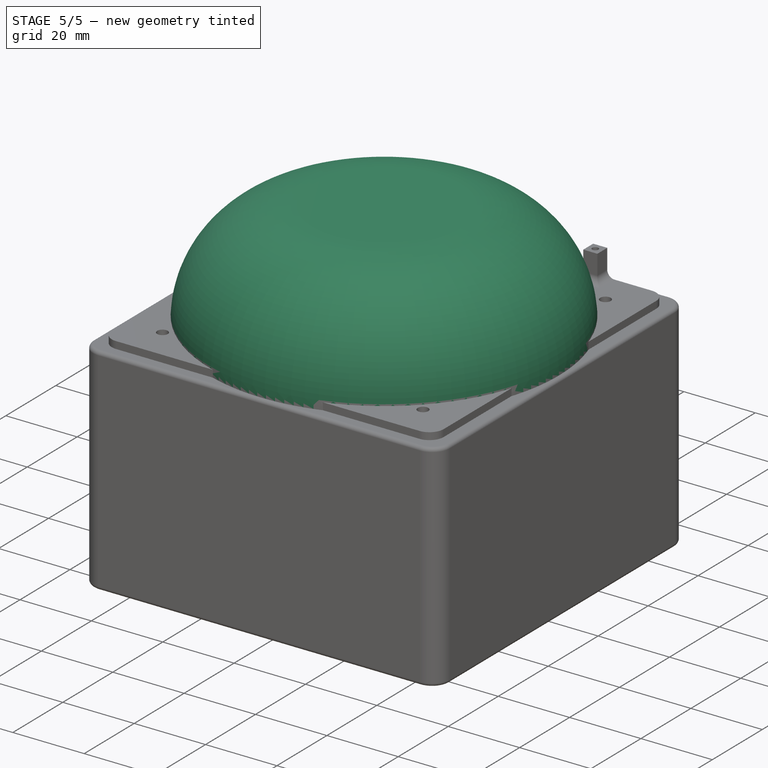
[diagram: stage 5 of 5 — iso view after this stage's code; geometry added in this stage tinted green]
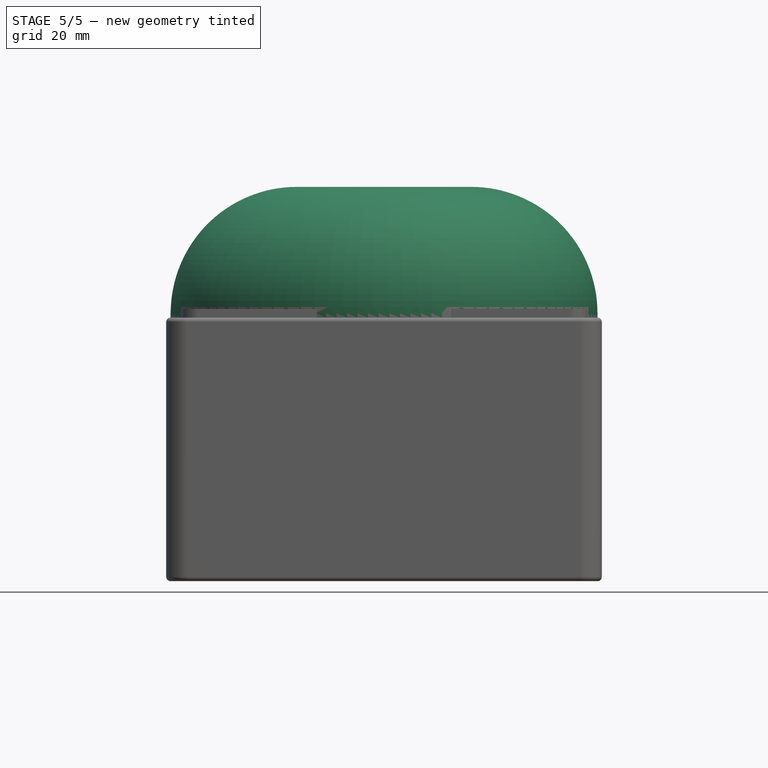
[diagram: stage 5 of 5 — front view after this stage's code; geometry added in this stage tinted green]
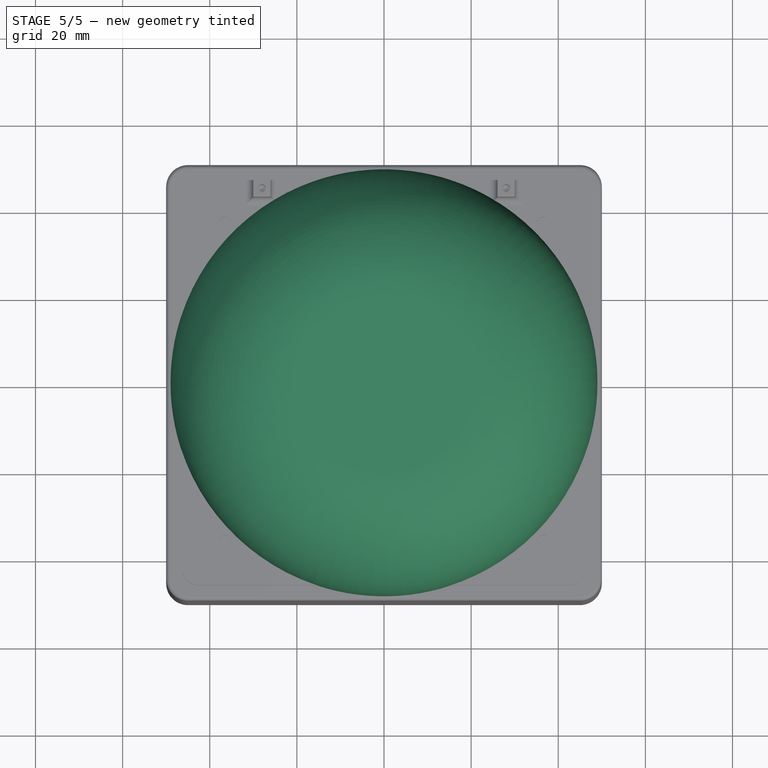
[diagram: stage 5 of 5 — top view after this stage's code; geometry added in this stage tinted green]
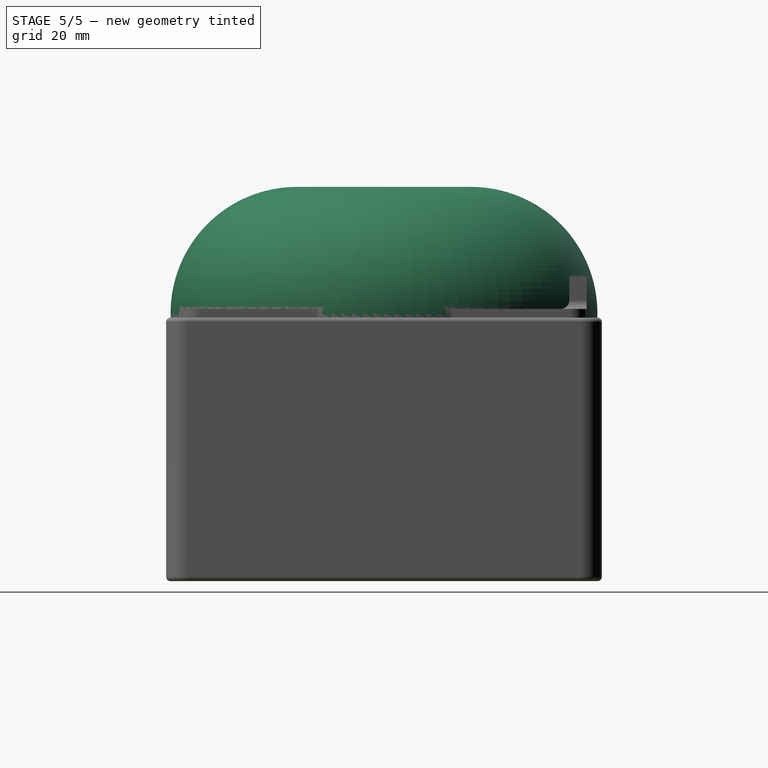
[diagram: stage 5 of 5 — right view after this stage's code; geometry added in this stage tinted green]
FEATURE [Sketcher::SketchObject] Sketch
  MapMode = 5
  Support = -> [XY_Plane]
  sketch-geometry (1):
    g0: Circle CenterX=0 CenterY=0 CenterZ=0 NormalX=0 NormalY=0 NormalZ=1 AngleXU=0 Radius=49
  constraints (2):
    c: Coincident(g0,g-1)
    c: Radius(g0) = 49
FEATURE [PartDesign::Pad] Pad
  Length = 30
  Length2 = 100
  Profile = -> Sketch
  Type = 0
FEATURE [PartDesign::Fillet] Fillet
  Base = -> Pad [Edge3]
  BaseFeature = -> Pad
  Radius = 29
FEATURE [Sketcher::SketchObject] Sketch006
  MapMode = 5
  Placement = pos=(0,0,0) rot=(1,0,0;3.14159rad)
  Support = -> [Fillet]
  sketch-geometry (1):
    g0: Circle CenterX=0 CenterY=0 CenterZ=0 NormalX=0 NormalY=0 NormalZ=1 AngleXU=0 Radius=11.25
  constraints (2):
    c: Coincident(g0,g-1)
    c: Radius(g0) = 11.25
FEATURE [PartDesign::Pad] Pad007
  BaseFeature = -> Fillet
  Length = 26.5
  Length2 = 100
  Profile = -> Sketch006
  Type = 0
FEATURE [Sketcher::SketchObject] Sketch007
  MapMode = 5
  Placement = pos=(0,0,-26.5) rot=(1,0,0;3.14159rad)
  Support = -> [Pad007]
  sketch-geometry (4):
    g0: LineSegment StartX=-17.5 StartY=10 StartZ=0 EndX=17.5 EndY=10 EndZ=0
    g1: LineSegment StartX=17.5 StartY=10 StartZ=0 EndX=17.5 EndY=-10 EndZ=0
    g2: LineSegment StartX=17.5 StartY=-10 StartZ=0 EndX=-17.5 EndY=-10 EndZ=0
    g3: LineSegment StartX=-17.5 StartY=-10 StartZ=0 EndX=-17.5 EndY=10 EndZ=0
  constraints (11):
    c: Coincident(g0,g1)
    c: Coincident(g1,g2)
    c: Coincident(g2,g3)
    c: Coincident(g3,g0)
    c: Horizontal(g0)
    c: Horizontal(g2)
    c: Vertical(g1)
    c: Vertical(g3)
    c: Symmetric(g1,g0,g-1)
    c: DistanceY(g3,g3) = 20
    c: DistanceX(g2,g2) = 35
FEATURE [PartDesign::Pad] Pad008
  BaseFeature = -> Pad007
  Length = 23
  Length2 = 100
  Profile = -> Sketch007
  Type = 0
FEATURE [Sketcher::SketchObject] Sketch012
  ExternalGeometry = -> [Pad010]
  MapMode = 5
  Placement = pos=(0,20.5,0) rot=(0,0.707107,0.707107;3.14159rad)
  Support = -> [Pad010]
  sketch-geometry (4):
    g0: LineSegment StartX=-3.75 StartY=8.3 StartZ=0 EndX=3.75 EndY=8.3 EndZ=0
    g1: LineSegment StartX=3.75 StartY=8.3 StartZ=0 EndX=3.75 EndY=5.8 EndZ=0
    g2: LineSegment StartX=3.75 StartY=5.8 StartZ=0 EndX=-3.75 EndY=5.8 EndZ=0
    g3: LineSegment StartX=-3.75 StartY=5.8 StartZ=0 EndX=-3.75 EndY=8.3 EndZ=0
  constraints (12):
    c: Coincident(g0,g1)
    c: Coincident(g1,g2)
    c: Coincident(g2,g3)
    c: Coincident(g3,g0)
    c: Horizontal(g0)
    c: Horizontal(g2)
    c: Vertical(g1)
    c: Vertical(g3)
    c: Symmetric(g0,g0,g-2)
    c: DistanceX(g0,g0) = 7.5
    c: DistanceY(g3,g3) = 2.5
    c: DistanceY(g-3,g2) = 4.3
FEATURE [PartDesign::Pad] Pad011
  BaseFeature = -> Pad010
  Length = 2
  Length2 = 100
  Midplane = true
  Profile = -> Sketch012
  Type = 0
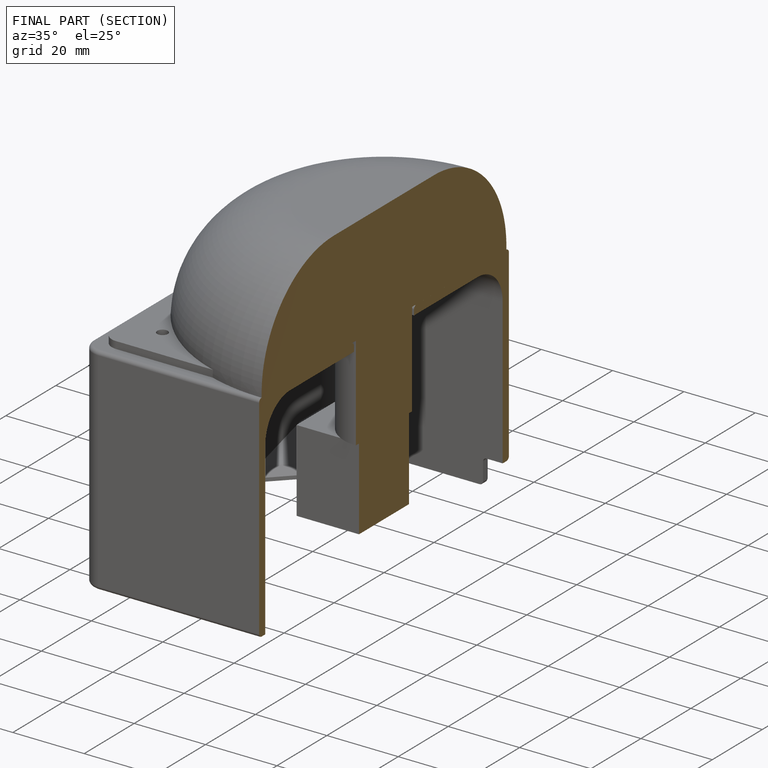
[diagram: finished part — half-section view (interior)]
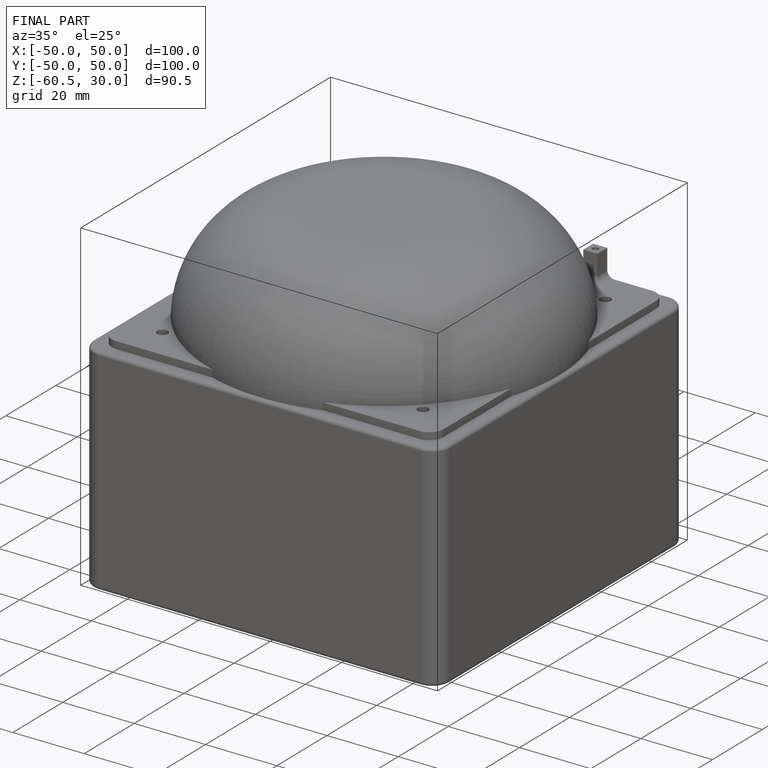
[diagram: finished part — iso view with bounding-box wireframe]
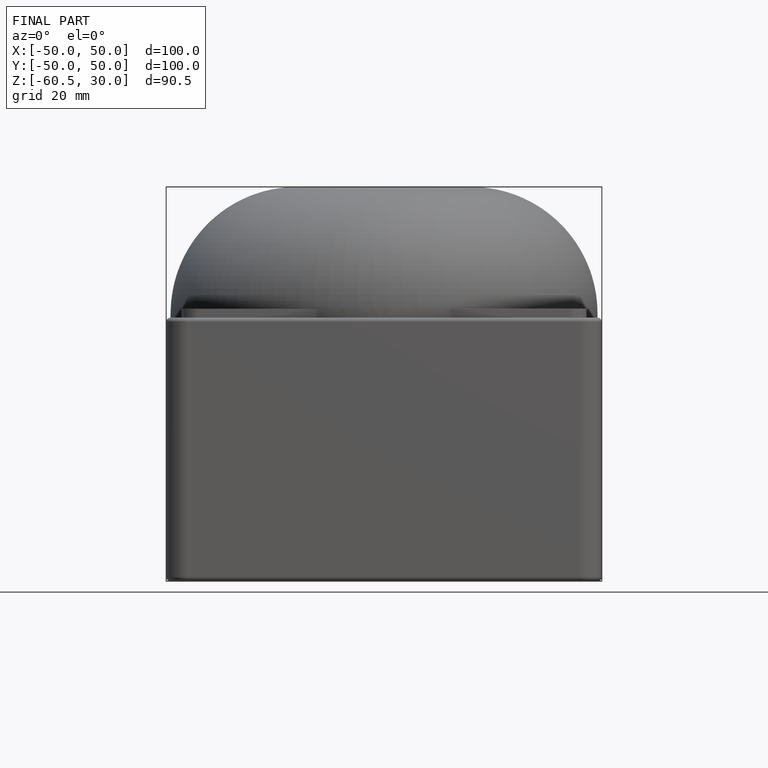
[diagram: finished part — front view with bounding-box wireframe]
